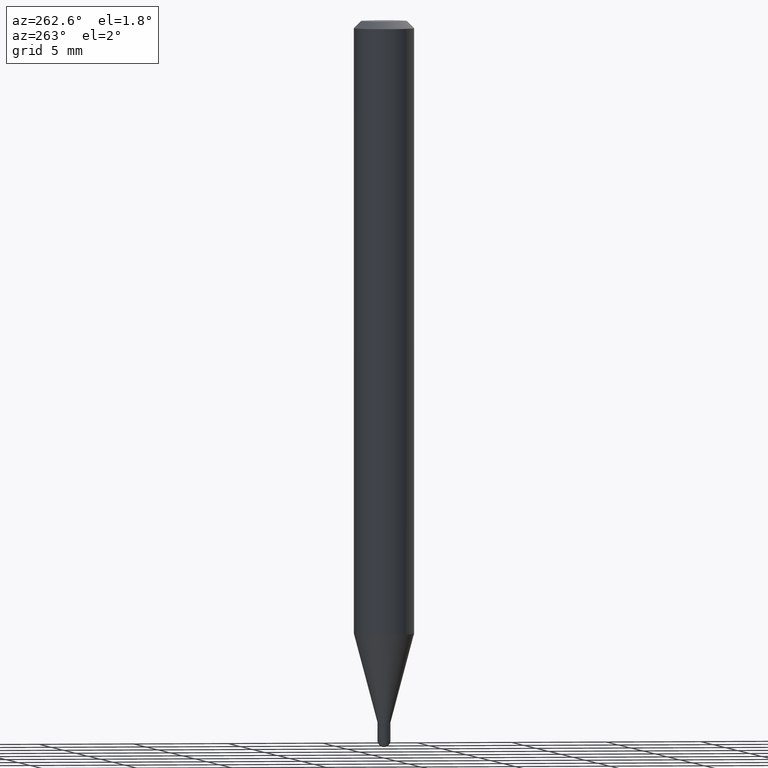
[diagram: clean part render]
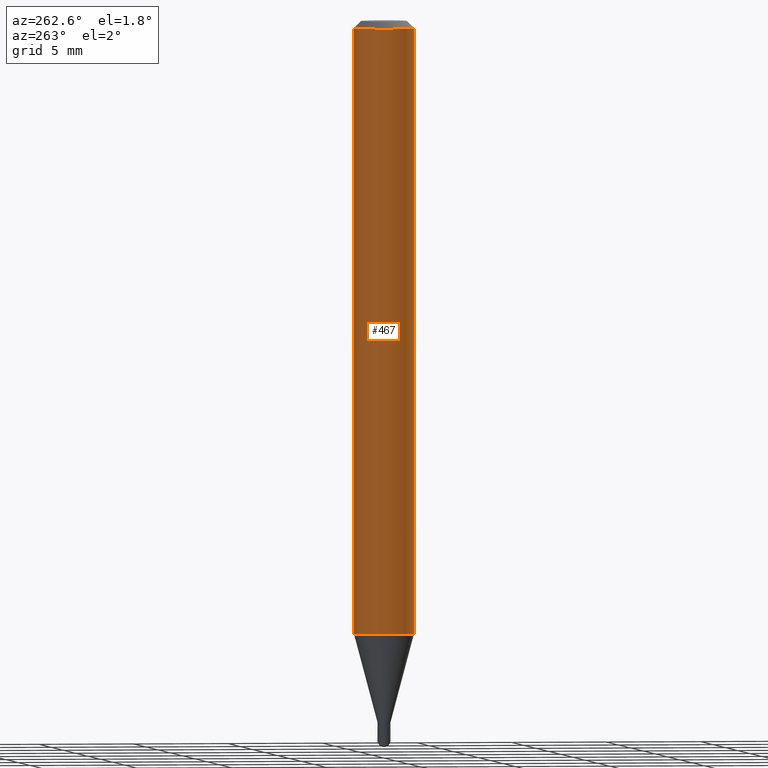
[diagram: same view with one face highlighted and labeled with its STEP entity id]
A machine part, auxiliary view. The second image highlights one B-rep face of the part: STEP entity #467.
In plain terms, the highlighted cylindrical surface (edge-blend (fillet) strip) has radius 1.5875 mm, axis along (-0, 0, 1).
Its self-contained STEP definition (entity closure, byte-faithful):
#9 = VERTEX_POINT ( 'NONE', #373 ) ;
#32 = EDGE_CURVE ( 'NONE', #315, #215, #500, .T. ) ;
#39 = DIRECTION ( 'NONE',  ( -2.445469396316461036E-29, 3.491480493741500613E-15, 1.000000000000000000 ) ) ;
#62 = ORIENTED_EDGE ( 'NONE', *, *, #290, .F. ) ;
#81 = EDGE_CURVE ( 'NONE', #9, #210, #144, .T. ) ;
#105 = DIRECTION ( 'NONE',  ( -2.445469396316461036E-29, 3.491480493741500613E-15, 1.000000000000000000 ) ) ;
#120 = VECTOR ( 'NONE', #149, 39.37007874015748143 ) ;
#144 = CIRCLE ( 'NONE', #506, 0.06250000000000000000 ) ;
#149 = DIRECTION ( 'NONE',  ( -2.445469396316461036E-29, 3.491480493741500613E-15, 1.000000000000000000 ) ) ;
#167 = DIRECTION ( 'NONE',  ( -6.982962677686265922E-15, -1.000000000000000000, 3.483106191921935554E-15 ) ) ;
#180 = CARTESIAN_POINT ( 'NONE',  ( 4.440892098500625669E-16, 0.06250000000000000000, -2.182175308588437883E-16 ) ) ;
#185 = AXIS2_PLACEMENT_3D ( 'NONE', #431, #331, #475 ) ;
#202 = DIRECTION ( 'NONE',  ( -6.982962677686265922E-15, -1.000000000000000000, 4.370956789862821150E-15 ) ) ;
#210 = VERTEX_POINT ( 'NONE', #374 ) ;
#215 = VERTEX_POINT ( 'NONE', #219 ) ;
#218 = ORIENTED_EDGE ( 'NONE', *, *, #233, .T. ) ;
#219 = CARTESIAN_POINT ( 'NONE',  ( -4.364351673553912750E-16, -0.06250000000000005551, -0.01499999999999979128 ) ) ;
#233 = EDGE_CURVE ( 'NONE', #210, #215, #382, .T. ) ;
#241 = CARTESIAN_POINT ( 'NONE',  ( 3.096280969527570590E-29, -4.420666488213768000E-15, -1.266129510429125693 ) ) ;
#256 = EDGE_LOOP ( 'NONE', ( #62, #339, #218, #327 ) ) ;
#258 = FACE_OUTER_BOUND ( 'NONE', #256, .T. ) ;
#290 = EDGE_CURVE ( 'NONE', #9, #315, #496, .T. ) ;
#315 = VERTEX_POINT ( 'NONE', #346 ) ;
#327 = ORIENTED_EDGE ( 'NONE', *, *, #32, .F. ) ;
#331 = DIRECTION ( 'NONE',  ( -2.445469396316461036E-29, 3.491480493741500613E-15, 1.000000000000000000 ) ) ;
#334 = CARTESIAN_POINT ( 'NONE',  ( 3.668204094474693989E-31, -5.237220740612253655E-17, -0.01500000000000000812 ) ) ;
#339 = ORIENTED_EDGE ( 'NONE', *, *, #81, .T. ) ;
#346 = CARTESIAN_POINT ( 'NONE',  ( 4.440892098500936776E-16, 0.06249999999999993755, -0.01500000000000022669 ) ) ;
#373 = CARTESIAN_POINT ( 'NONE',  ( 4.440892098500933817E-16, 0.06249999999999557992, -1.266129510429125915 ) ) ;
#374 = CARTESIAN_POINT ( 'NONE',  ( -4.364351673553607559E-16, -0.06250000000000442701, -1.266129510429125471 ) ) ;
#381 = AXIS2_PLACEMENT_3D ( 'NONE', #334, #405, #167 ) ;
#382 = LINE ( 'NONE', #451, #415 ) ;
#405 = DIRECTION ( 'NONE',  ( -2.445469396316461036E-29, 3.491480493741500613E-15, 1.000000000000000000 ) ) ;
#415 = VECTOR ( 'NONE', #105, 39.37007874015748143 ) ;
#431 = CARTESIAN_POINT ( 'NONE',  ( 0.000000000000000000, 0.000000000000000000, 0.000000000000000000 ) ) ;
#440 = CYLINDRICAL_SURFACE ( 'NONE', #185, 0.06250000000000000000 ) ;
#451 = CARTESIAN_POINT ( 'NONE',  ( -4.364351673553916201E-16, -0.06250000000000000000, 2.182175308588437883E-16 ) ) ;
#467 = ADVANCED_FACE ( 'NONE', ( #258 ), #440, .T. ) ;
#475 = DIRECTION ( 'NONE',  ( -6.982962677686265922E-15, -1.000000000000000000, 3.491480493741500613E-15 ) ) ;
#496 = LINE ( 'NONE', #180, #120 ) ;
#500 = CIRCLE ( 'NONE', #381, 0.06250000000000000000 ) ;
#506 = AXIS2_PLACEMENT_3D ( 'NONE', #241, #39, #202 ) ;